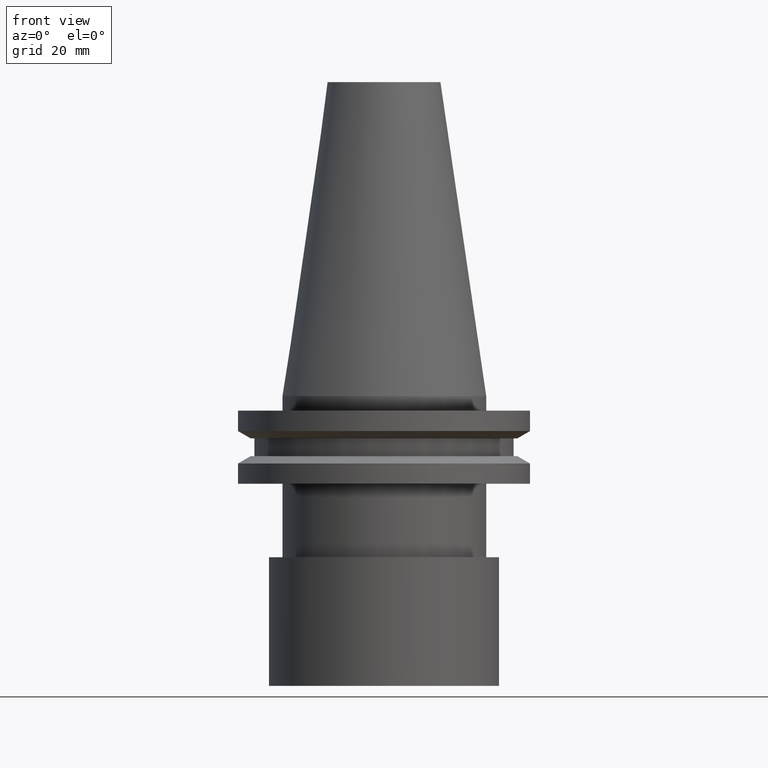
[diagram: clean part render]
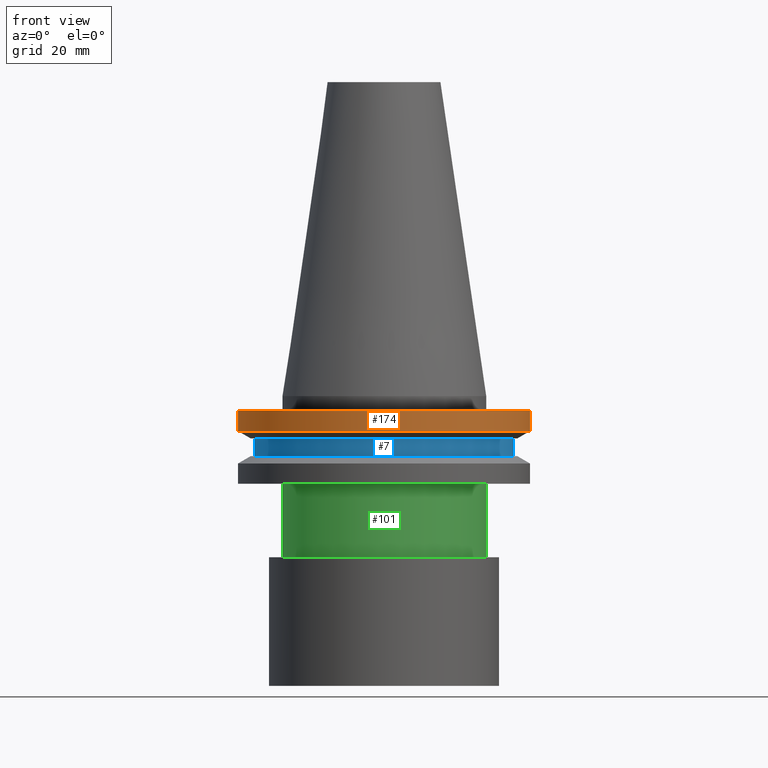
[diagram: same view with three faces highlighted in distinct colors, each labeled with its STEP entity id]
A machine part, front view with three faces highlighted in distinct colors.
Their STEP definitions:

[orange] entity #174 — the highlighted cylindrical surface (bore or boss wall) has radius 31.75 mm, axis along (-0, -0, 1).
#15 = DIRECTION ( 'NONE',  ( 1.000000000000000000, 0.000000000000000000, 0.000000000000000000 ) ) ;
#40 = AXIS2_PLACEMENT_3D ( 'NONE', #118, #347, #61 ) ;
#61 = DIRECTION ( 'NONE',  ( 1.000000000000000000, 0.000000000000000000, 0.000000000000000000 ) ) ;
#74 = AXIS2_PLACEMENT_3D ( 'NONE', #82, #191, #100 ) ;
#82 = CARTESIAN_POINT ( 'NONE',  ( 0.000000000000000000, 0.000000000000000000, 68.25000000000000000 ) ) ;
#84 = EDGE_CURVE ( 'NONE', #358, #358, #230, .T. ) ;
#86 = EDGE_LOOP ( 'NONE', ( #128 ) ) ;
#100 = DIRECTION ( 'NONE',  ( 1.000000000000000000, 0.000000000000000000, 0.000000000000000000 ) ) ;
#109 = CARTESIAN_POINT ( 'NONE',  ( 31.75000000000000000, 0.000000000000000000, -7.605276606597335842 ) ) ;
#118 = CARTESIAN_POINT ( 'NONE',  ( 0.000000000000000000, 0.000000000000000000, -7.605276606597335842 ) ) ;
#128 = ORIENTED_EDGE ( 'NONE', *, *, #315, .T. ) ;
#160 = CYLINDRICAL_SURFACE ( 'NONE', #74, 31.75000000000000000 ) ;
#174 = ADVANCED_FACE ( 'NONE', ( #391, #339 ), #160, .T. ) ;
#185 = EDGE_LOOP ( 'NONE', ( #217 ) ) ;
#187 = CARTESIAN_POINT ( 'NONE',  ( 0.000000000000000000, 0.000000000000000000, -3.174999999999997158 ) ) ;
#191 = DIRECTION ( 'NONE',  ( -0.000000000000000000, -0.000000000000000000, 1.000000000000000000 ) ) ;
#217 = ORIENTED_EDGE ( 'NONE', *, *, #84, .F. ) ;
#230 = CIRCLE ( 'NONE', #330, 31.75000000000000000 ) ;
#268 = CIRCLE ( 'NONE', #40, 31.75000000000000000 ) ;
#283 = CARTESIAN_POINT ( 'NONE',  ( 31.75000000000000000, 0.000000000000000000, -3.174999999999997158 ) ) ;
#309 = VERTEX_POINT ( 'NONE', #109 ) ;
#315 = EDGE_CURVE ( 'NONE', #309, #309, #268, .T. ) ;
#330 = AXIS2_PLACEMENT_3D ( 'NONE', #187, #333, #15 ) ;
#333 = DIRECTION ( 'NONE',  ( -0.000000000000000000, -0.000000000000000000, 1.000000000000000000 ) ) ;
#339 = FACE_OUTER_BOUND ( 'NONE', #86, .T. ) ;
#347 = DIRECTION ( 'NONE',  ( -0.000000000000000000, -0.000000000000000000, 1.000000000000000000 ) ) ;
#358 = VERTEX_POINT ( 'NONE', #283 ) ;
#391 = FACE_OUTER_BOUND ( 'NONE', #185, .T. ) ;

[blue] entity #7 — the highlighted cylindrical surface (bore or boss wall) has radius 28.18 mm, axis along (-0, -0, 1).
#7 = ADVANCED_FACE ( 'NONE', ( #39, #158 ), #13, .T. ) ;
#13 = CYLINDRICAL_SURFACE ( 'NONE', #388, 28.17999999999999972 ) ;
#14 = CARTESIAN_POINT ( 'NONE',  ( 0.000000000000000000, 0.000000000000000000, -13.05499999999999794 ) ) ;
#39 = FACE_OUTER_BOUND ( 'NONE', #370, .T. ) ;
#62 = CIRCLE ( 'NONE', #110, 28.17999999999999972 ) ;
#94 = EDGE_CURVE ( 'NONE', #292, #292, #147, .T. ) ;
#97 = CARTESIAN_POINT ( 'NONE',  ( 28.17999999999999972, 0.000000000000000000, -13.05499999999999794 ) ) ;
#106 = CARTESIAN_POINT ( 'NONE',  ( 0.000000000000000000, 0.000000000000000000, -9.204999999999991189 ) ) ;
#110 = AXIS2_PLACEMENT_3D ( 'NONE', #106, #141, #232 ) ;
#130 = DIRECTION ( 'NONE',  ( -0.000000000000000000, -0.000000000000000000, 1.000000000000000000 ) ) ;
#132 = CARTESIAN_POINT ( 'NONE',  ( 28.17999999999999972, 0.000000000000000000, -9.204999999999991189 ) ) ;
#141 = DIRECTION ( 'NONE',  ( -0.000000000000000000, -0.000000000000000000, 1.000000000000000000 ) ) ;
#147 = CIRCLE ( 'NONE', #300, 28.17999999999999972 ) ;
#158 = FACE_OUTER_BOUND ( 'NONE', #352, .T. ) ;
#188 = VERTEX_POINT ( 'NONE', #132 ) ;
#189 = EDGE_CURVE ( 'NONE', #188, #188, #62, .T. ) ;
#224 = DIRECTION ( 'NONE',  ( 1.000000000000000000, 0.000000000000000000, 0.000000000000000000 ) ) ;
#232 = DIRECTION ( 'NONE',  ( 1.000000000000000000, 0.000000000000000000, 0.000000000000000000 ) ) ;
#237 = ORIENTED_EDGE ( 'NONE', *, *, #94, .T. ) ;
#243 = CARTESIAN_POINT ( 'NONE',  ( 0.000000000000000000, 0.000000000000000000, 68.25000000000000000 ) ) ;
#248 = DIRECTION ( 'NONE',  ( 1.000000000000000000, 0.000000000000000000, 0.000000000000000000 ) ) ;
#257 = DIRECTION ( 'NONE',  ( -0.000000000000000000, -0.000000000000000000, 1.000000000000000000 ) ) ;
#292 = VERTEX_POINT ( 'NONE', #97 ) ;
#300 = AXIS2_PLACEMENT_3D ( 'NONE', #14, #257, #224 ) ;
#352 = EDGE_LOOP ( 'NONE', ( #237 ) ) ;
#370 = EDGE_LOOP ( 'NONE', ( #373 ) ) ;
#373 = ORIENTED_EDGE ( 'NONE', *, *, #189, .F. ) ;
#388 = AXIS2_PLACEMENT_3D ( 'NONE', #243, #130, #248 ) ;

[green] entity #101 — the highlighted cylindrical surface (bore or boss wall) has radius 22.225 mm, axis along (-0, -0, 1).
#24 = FACE_OUTER_BOUND ( 'NONE', #201, .T. ) ;
#42 = DIRECTION ( 'NONE',  ( -0.000000000000000000, -0.000000000000000000, 1.000000000000000000 ) ) ;
#47 = CARTESIAN_POINT ( 'NONE',  ( 0.000000000000000000, 0.000000000000000000, -35.04999999999999716 ) ) ;
#53 = CIRCLE ( 'NONE', #287, 22.22500000000000142 ) ;
#69 = CYLINDRICAL_SURFACE ( 'NONE', #181, 22.22500000000000142 ) ;
#70 = AXIS2_PLACEMENT_3D ( 'NONE', #47, #303, #264 ) ;
#79 = DIRECTION ( 'NONE',  ( -0.000000000000000000, -0.000000000000000000, 1.000000000000000000 ) ) ;
#101 = ADVANCED_FACE ( 'NONE', ( #24, #357 ), #69, .T. ) ;
#135 = CARTESIAN_POINT ( 'NONE',  ( 22.22500000000000142, 0.000000000000000000, -19.04999999999999716 ) ) ;
#136 = CARTESIAN_POINT ( 'NONE',  ( 0.000000000000000000, 0.000000000000000000, -19.04999999999999716 ) ) ;
#138 = DIRECTION ( 'NONE',  ( 1.000000000000000000, 0.000000000000000000, 0.000000000000000000 ) ) ;
#149 = EDGE_LOOP ( 'NONE', ( #153 ) ) ;
#153 = ORIENTED_EDGE ( 'NONE', *, *, #260, .T. ) ;
#181 = AXIS2_PLACEMENT_3D ( 'NONE', #329, #42, #204 ) ;
#195 = VERTEX_POINT ( 'NONE', #135 ) ;
#197 = CIRCLE ( 'NONE', #70, 22.22500000000000142 ) ;
#201 = EDGE_LOOP ( 'NONE', ( #270 ) ) ;
#204 = DIRECTION ( 'NONE',  ( 1.000000000000000000, 0.000000000000000000, 0.000000000000000000 ) ) ;
#222 = EDGE_CURVE ( 'NONE', #195, #195, #53, .T. ) ;
#231 = CARTESIAN_POINT ( 'NONE',  ( 22.22500000000000142, 0.000000000000000000, -35.04999999999999716 ) ) ;
#260 = EDGE_CURVE ( 'NONE', #332, #332, #197, .T. ) ;
#264 = DIRECTION ( 'NONE',  ( 1.000000000000000000, 0.000000000000000000, 0.000000000000000000 ) ) ;
#270 = ORIENTED_EDGE ( 'NONE', *, *, #222, .F. ) ;
#287 = AXIS2_PLACEMENT_3D ( 'NONE', #136, #79, #138 ) ;
#303 = DIRECTION ( 'NONE',  ( -0.000000000000000000, -0.000000000000000000, 1.000000000000000000 ) ) ;
#329 = CARTESIAN_POINT ( 'NONE',  ( 0.000000000000000000, 0.000000000000000000, 68.25000000000000000 ) ) ;
#332 = VERTEX_POINT ( 'NONE', #231 ) ;
#357 = FACE_OUTER_BOUND ( 'NONE', #149, .T. ) ;